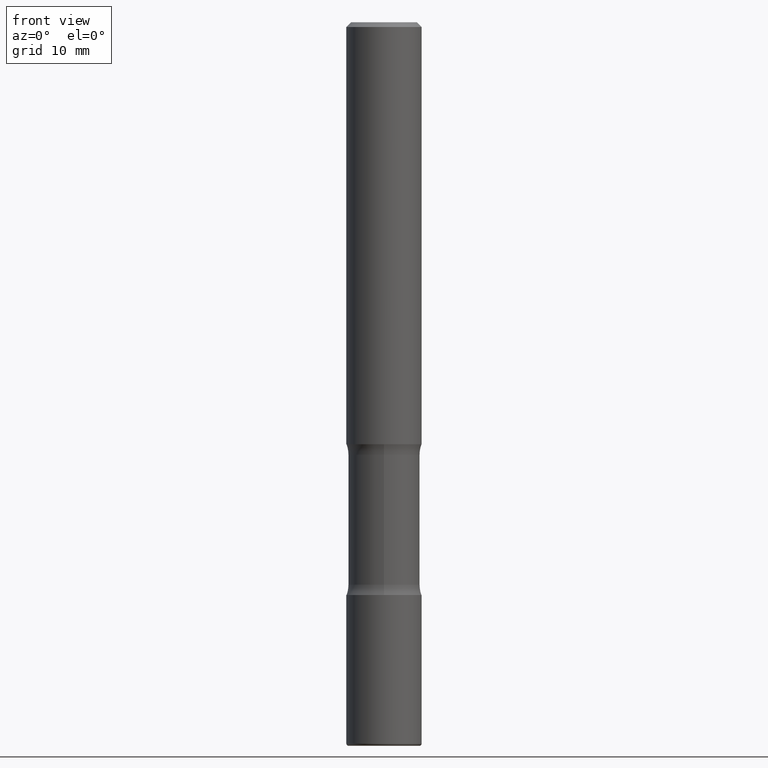
[diagram: clean part render]
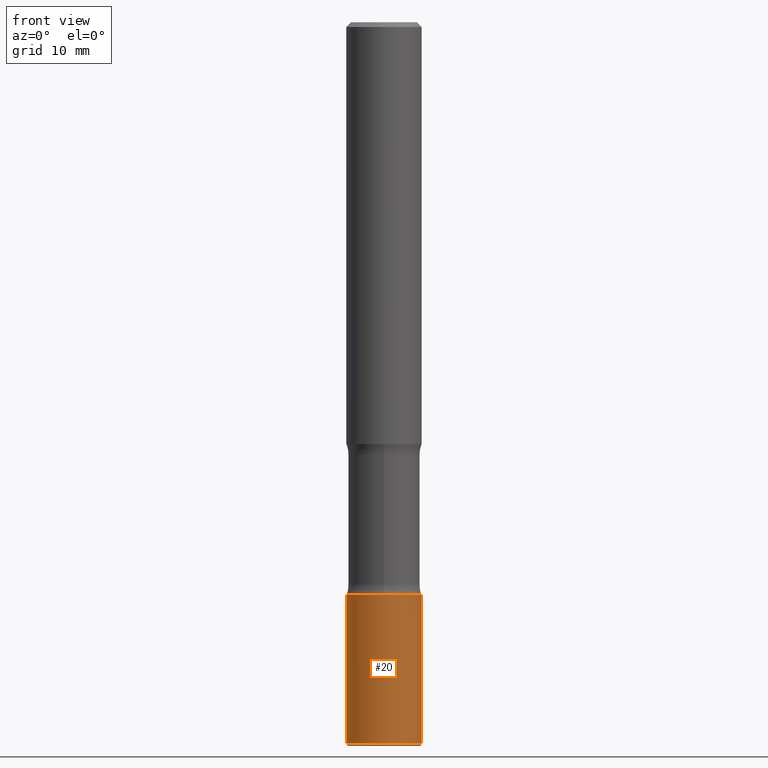
[diagram: same view with one face highlighted and labeled with its STEP entity id]
A machine part, front view. The second image highlights one B-rep face of the part: STEP entity #20.
In plain terms, the highlighted cylindrical surface (partial cylindrical patch) has radius 3.9688 mm, axis along (-0, 0, 1).
Its self-contained STEP definition (entity closure, byte-faithful):
#1 = VERTEX_POINT ( 'NONE', #132 ) ;
#20 = ADVANCED_FACE ( 'NONE', ( #230 ), #358, .T. ) ;
#35 = CIRCLE ( 'NONE', #415, 0.1562500000000001110 ) ;
#96 = DIRECTION ( 'NONE',  ( -2.445468806185136597E-29, 3.491481338843145583E-15, 1.000000000000000000 ) ) ;
#108 = CIRCLE ( 'NONE', #529, 0.1562500000000001388 ) ;
#132 = CARTESIAN_POINT ( 'NONE',  ( 0.1562500000000001110, -9.383356098140953236E-15, -2.375000000000000444 ) ) ;
#144 = CARTESIAN_POINT ( 'NONE',  ( -0.1562500000000001110, -8.255675666821583237E-15, -2.375000000000000444 ) ) ;
#148 = DIRECTION ( 'NONE',  ( -2.445468806185136597E-29, 3.491481338843145583E-15, 1.000000000000000000 ) ) ;
#156 = EDGE_CURVE ( 'NONE', #555, #517, #108, .T. ) ;
#176 = AXIS2_PLACEMENT_3D ( 'NONE', #535, #315, #501 ) ;
#188 = CARTESIAN_POINT ( 'NONE',  ( 5.807988414689700538E-29, -8.292268179752471696E-15, -2.375000000000000444 ) ) ;
#210 = ORIENTED_EDGE ( 'NONE', *, *, #156, .T. ) ;
#211 = CARTESIAN_POINT ( 'NONE',  ( 0.1562500000000001665, -1.153061712152948940E-14, -2.990000000000000657 ) ) ;
#230 = FACE_OUTER_BOUND ( 'NONE', #232, .T. ) ;
#232 = EDGE_LOOP ( 'NONE', ( #381, #210, #484, #471 ) ) ;
#242 = CARTESIAN_POINT ( 'NONE',  ( -0.1562500000000001388, 1.110223024625157526E-15, -7.685836078523296765E-30 ) ) ;
#271 = CARTESIAN_POINT ( 'NONE',  ( 0.1562500000000001388, -1.091087918388480160E-15, 7.619026212181157383E-30 ) ) ;
#275 = DIRECTION ( 'NONE',  ( -2.445468806185136877E-29, 3.491481338843145188E-15, 1.000000000000000000 ) ) ;
#280 = VECTOR ( 'NONE', #275, 39.37007874015748143 ) ;
#315 = DIRECTION ( 'NONE',  ( -2.445468806185136597E-29, 3.491481338843145583E-15, 1.000000000000000000 ) ) ;
#331 = CARTESIAN_POINT ( 'NONE',  ( -0.1562500000000001665, -9.329306178515849742E-15, -2.990000000000000657 ) ) ;
#358 = CYLINDRICAL_SURFACE ( 'NONE', #176, 0.1562500000000001388 ) ;
#362 = DIRECTION ( 'NONE',  ( 1.000000000000000000, -6.982962677686270655E-15, 0.000000000000000000 ) ) ;
#364 = LINE ( 'NONE', #242, #280 ) ;
#381 = ORIENTED_EDGE ( 'NONE', *, *, #404, .F. ) ;
#385 = VERTEX_POINT ( 'NONE', #144 ) ;
#400 = DIRECTION ( 'NONE',  ( 1.000000000000000000, -6.982962677686269077E-15, 0.000000000000000000 ) ) ;
#404 = EDGE_CURVE ( 'NONE', #555, #385, #364, .T. ) ;
#415 = AXIS2_PLACEMENT_3D ( 'NONE', #188, #148, #362 ) ;
#436 = EDGE_CURVE ( 'NONE', #385, #1, #35, .T. ) ;
#471 = ORIENTED_EDGE ( 'NONE', *, *, #436, .F. ) ;
#482 = EDGE_CURVE ( 'NONE', #517, #1, #538, .T. ) ;
#484 = ORIENTED_EDGE ( 'NONE', *, *, #482, .T. ) ;
#496 = CARTESIAN_POINT ( 'NONE',  ( 7.311951730493559366E-29, -1.043952920314100786E-14, -2.990000000000000657 ) ) ;
#501 = DIRECTION ( 'NONE',  ( 1.000000000000000000, -6.982962677686266711E-15, 4.876176775795936353E-29 ) ) ;
#507 = VECTOR ( 'NONE', #544, 39.37007874015748143 ) ;
#517 = VERTEX_POINT ( 'NONE', #211 ) ;
#529 = AXIS2_PLACEMENT_3D ( 'NONE', #496, #96, #400 ) ;
#535 = CARTESIAN_POINT ( 'NONE',  ( 0.000000000000000000, 0.000000000000000000, 0.000000000000000000 ) ) ;
#538 = LINE ( 'NONE', #271, #507 ) ;
#544 = DIRECTION ( 'NONE',  ( -2.445468806185136877E-29, 3.491481338843145188E-15, 1.000000000000000000 ) ) ;
#555 = VERTEX_POINT ( 'NONE', #331 ) ;